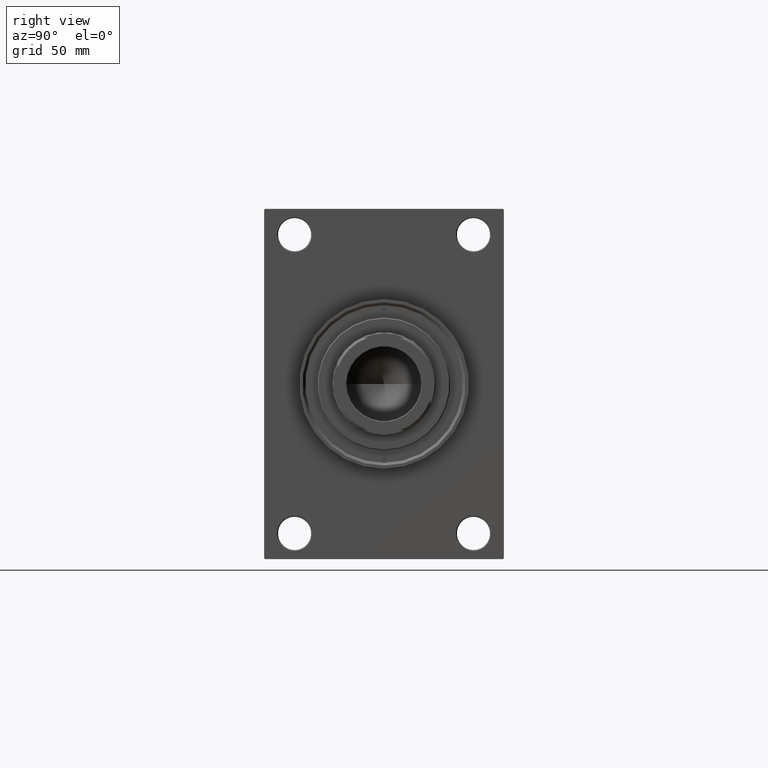
[diagram: clean part render]
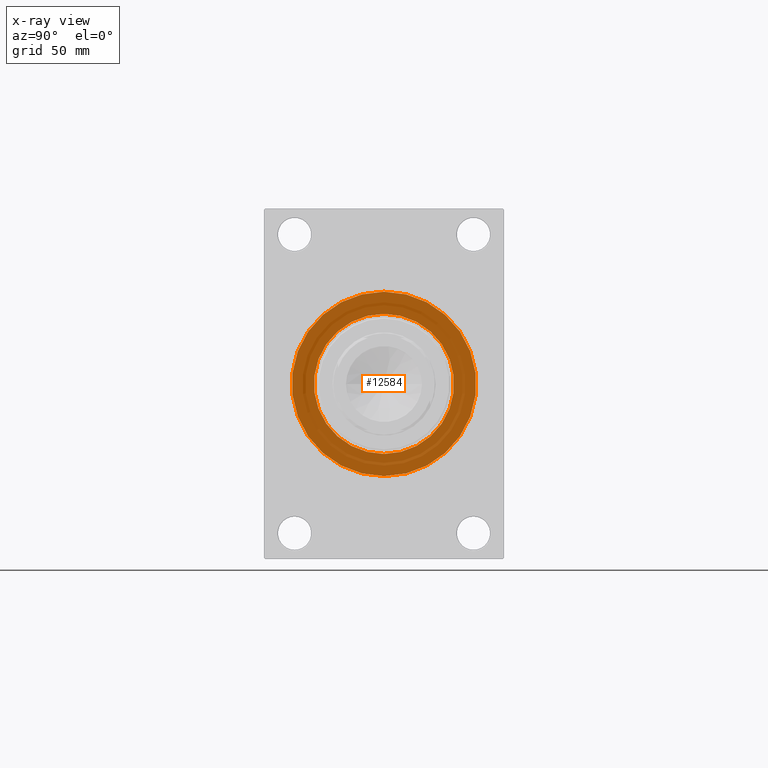
[diagram: x-ray — body ghosted, one internal face saturated and labeled with its STEP entity id]
A machine part, right view, then the same camera in x-ray: the body is ghosted and one INTERNAL B-rep face — a face not visible from any outside direction — is saturated and labeled: STEP entity #12584.
In plain terms, the highlighted planar face has unit normal (-1, 0, 0).
Its self-contained STEP definition (entity closure, byte-faithful):
#636 = CARTESIAN_POINT ( 'NONE',  ( 195.9999999999999716, 0.000000000000000000, 0.000000000000000000 ) ) ;
#1464 = CIRCLE ( 'NONE', #23148, 38.00000000000000000 ) ;
#1465 = ORIENTED_EDGE ( 'NONE', *, *, #6993, .F. ) ;
#3825 = ORIENTED_EDGE ( 'NONE', *, *, #23083, .F. ) ;
#3967 = CIRCLE ( 'NONE', #8663, 50.00000000000000000 ) ;
#5997 = DIRECTION ( 'NONE',  ( -0.000000000000000000, 0.000000000000000000, 1.000000000000000000 ) ) ;
#6831 = CIRCLE ( 'NONE', #33938, 38.00000000000000000 ) ;
#6993 = EDGE_CURVE ( 'NONE', #47125, #14641, #3967, .T. ) ;
#7680 = CARTESIAN_POINT ( 'NONE',  ( 196.0000000000000000, -2.602085213965210642E-15, 0.000000000000000000 ) ) ;
#7913 = VERTEX_POINT ( 'NONE', #40758 ) ;
#8663 = AXIS2_PLACEMENT_3D ( 'NONE', #20562, #38996, #17149 ) ;
#10061 = CARTESIAN_POINT ( 'NONE',  ( 196.0000000000000000, -2.602085213965210642E-15, 50.00000000000000000 ) ) ;
#12584 = ADVANCED_FACE ( 'NONE', ( #24688, #35121 ), #46488, .T. ) ;
#12658 = CIRCLE ( 'NONE', #15758, 50.00000000000000000 ) ;
#13509 = EDGE_LOOP ( 'NONE', ( #37306, #1465 ) ) ;
#14641 = VERTEX_POINT ( 'NONE', #10061 ) ;
#15758 = AXIS2_PLACEMENT_3D ( 'NONE', #7680, #18139, #47718 ) ;
#16079 = ORIENTED_EDGE ( 'NONE', *, *, #21074, .F. ) ;
#17149 = DIRECTION ( 'NONE',  ( 0.000000000000000000, 0.000000000000000000, -1.000000000000000000 ) ) ;
#18139 = DIRECTION ( 'NONE',  ( 1.000000000000000000, 0.000000000000000000, 0.000000000000000000 ) ) ;
#18951 = VERTEX_POINT ( 'NONE', #36938 ) ;
#20562 = CARTESIAN_POINT ( 'NONE',  ( 196.0000000000000000, -2.602085213965210642E-15, 0.000000000000000000 ) ) ;
#21074 = EDGE_CURVE ( 'NONE', #7913, #18951, #1464, .T. ) ;
#23083 = EDGE_CURVE ( 'NONE', #18951, #7913, #6831, .T. ) ;
#23148 = AXIS2_PLACEMENT_3D ( 'NONE', #46915, #43978, #28503 ) ;
#24688 = FACE_BOUND ( 'NONE', #37864, .T. ) ;
#26748 = AXIS2_PLACEMENT_3D ( 'NONE', #34877, #42866, #5997 ) ;
#28503 = DIRECTION ( 'NONE',  ( 0.000000000000000000, 0.000000000000000000, 1.000000000000000000 ) ) ;
#29197 = CARTESIAN_POINT ( 'NONE',  ( 196.0000000000000000, 3.521148781771555838E-15, -50.00000000000000000 ) ) ;
#30247 = DIRECTION ( 'NONE',  ( -1.000000000000000000, 0.000000000000000000, -0.000000000000000000 ) ) ;
#33938 = AXIS2_PLACEMENT_3D ( 'NONE', #636, #30247, #45001 ) ;
#34877 = CARTESIAN_POINT ( 'NONE',  ( 196.0000000000000000, 0.000000000000000000, 0.000000000000000000 ) ) ;
#35121 = FACE_OUTER_BOUND ( 'NONE', #13509, .T. ) ;
#36938 = CARTESIAN_POINT ( 'NONE',  ( 195.9999999999999716, 0.000000000000000000, -38.00000000000000000 ) ) ;
#37306 = ORIENTED_EDGE ( 'NONE', *, *, #45653, .F. ) ;
#37864 = EDGE_LOOP ( 'NONE', ( #3825, #16079 ) ) ;
#38996 = DIRECTION ( 'NONE',  ( 1.000000000000000000, 0.000000000000000000, 0.000000000000000000 ) ) ;
#40758 = CARTESIAN_POINT ( 'NONE',  ( 195.9999999999999716, 4.653657836759941941E-15, 38.00000000000000000 ) ) ;
#42866 = DIRECTION ( 'NONE',  ( -1.000000000000000000, 0.000000000000000000, -0.000000000000000000 ) ) ;
#43978 = DIRECTION ( 'NONE',  ( -1.000000000000000000, 0.000000000000000000, -0.000000000000000000 ) ) ;
#45001 = DIRECTION ( 'NONE',  ( 0.000000000000000000, 0.000000000000000000, 1.000000000000000000 ) ) ;
#45653 = EDGE_CURVE ( 'NONE', #14641, #47125, #12658, .T. ) ;
#46488 = PLANE ( 'NONE',  #26748 ) ;
#46915 = CARTESIAN_POINT ( 'NONE',  ( 195.9999999999999716, 0.000000000000000000, 0.000000000000000000 ) ) ;
#47125 = VERTEX_POINT ( 'NONE', #29197 ) ;
#47718 = DIRECTION ( 'NONE',  ( 0.000000000000000000, 0.000000000000000000, -1.000000000000000000 ) ) ;